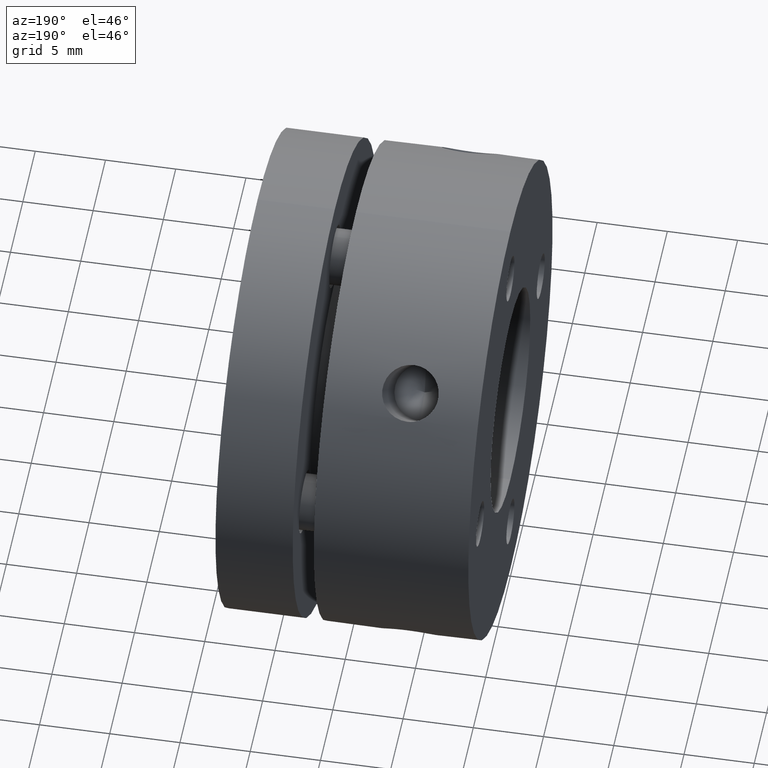
[diagram: clean part render]
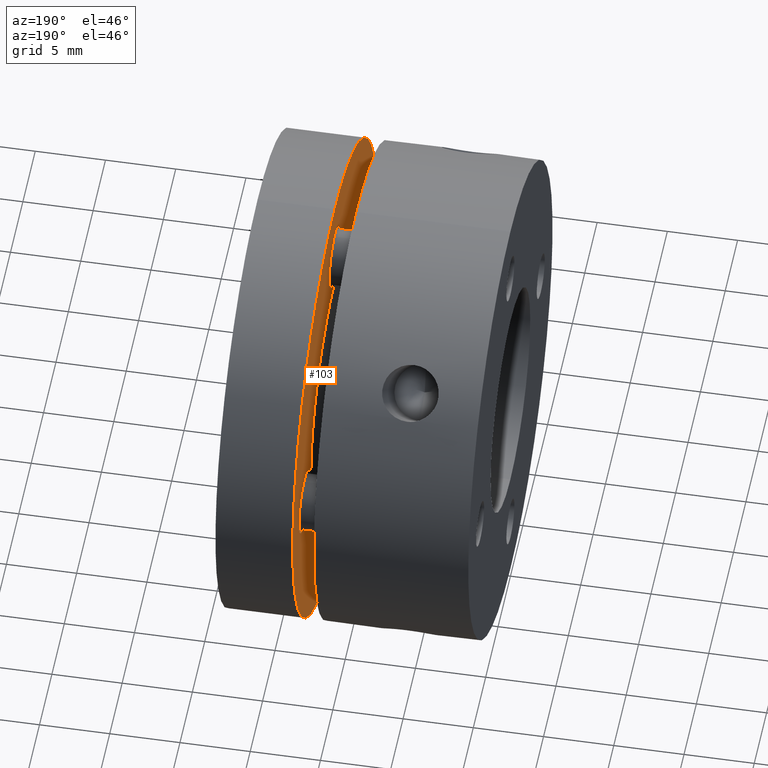
[diagram: same view with one face highlighted and labeled with its STEP entity id]
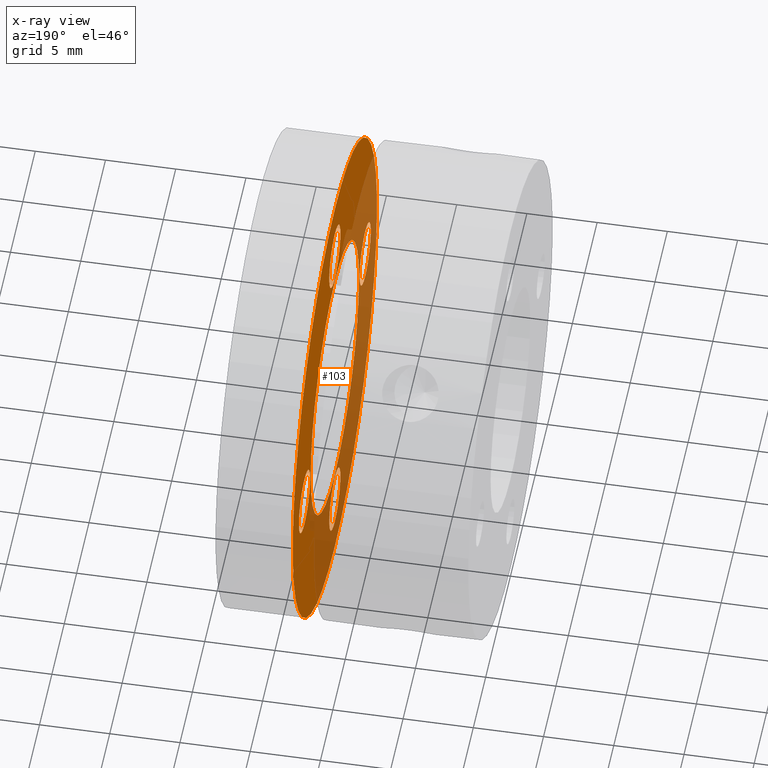
[diagram: x-ray of the same camera — body ghosted, the highlighted face saturated]
A machine part, auxiliary view. The second image highlights one B-rep face of the part: STEP entity #103.
The next image is the same camera in x-ray: the body ghosted, the highlighted face saturated — about 47% of this face is hidden behind the body in this view.
In plain terms, the highlighted planar face has unit normal (1, 0, 0).
Its self-contained STEP definition (entity closure, byte-faithful):
#103 = ADVANCED_FACE ( 'NONE', ( #336, #340, #337, #339, #338, #341 ), #3053, .F. ) ;
#148 = ORIENTED_EDGE ( 'NONE', *, *, #1424, .F. ) ;
#155 = ORIENTED_EDGE ( 'NONE', *, *, #1352, .F. ) ;
#336 = FACE_BOUND ( 'NONE', #2616, .T. ) ;
#337 = FACE_BOUND ( 'NONE', #2619, .T. ) ;
#338 = FACE_BOUND ( 'NONE', #2614, .T. ) ;
#339 = FACE_BOUND ( 'NONE', #2617, .T. ) ;
#340 = FACE_BOUND ( 'NONE', #2601, .T. ) ;
#341 = FACE_OUTER_BOUND ( 'NONE', #2615, .T. ) ;
#493 = AXIS2_PLACEMENT_3D ( 'NONE', #1573, #1574, #1575 ) ;
#527 = AXIS2_PLACEMENT_3D ( 'NONE', #3054, #3047, #3056 ) ;
#535 = AXIS2_PLACEMENT_3D ( 'NONE', #1583, #1584, #1585 ) ;
#537 = AXIS2_PLACEMENT_3D ( 'NONE', #1593, #1594, #1595 ) ;
#539 = AXIS2_PLACEMENT_3D ( 'NONE', #1604, #1605, #1606 ) ;
#595 = AXIS2_PLACEMENT_3D ( 'NONE', #1797, #1798, #1799 ) ;
#596 = AXIS2_PLACEMENT_3D ( 'NONE', #1794, #1795, #1796 ) ;
#597 = AXIS2_PLACEMENT_3D ( 'NONE', #1791, #1792, #1793 ) ;
#598 = AXIS2_PLACEMENT_3D ( 'NONE', #1788, #1789, #1790 ) ;
#630 = AXIS2_PLACEMENT_3D ( 'NONE', #1818, #1819, #1820 ) ;
#636 = AXIS2_PLACEMENT_3D ( 'NONE', #1785, #1786, #1787 ) ;
#666 = AXIS2_PLACEMENT_3D ( 'NONE', #1486, #1487, #1485 ) ;
#683 = AXIS2_PLACEMENT_3D ( 'NONE', #1563, #1564, #1565 ) ;
#833 = CIRCLE ( 'NONE', #666, 9.749999999999996400 ) ;
#865 = CIRCLE ( 'NONE', #683, 2.250000000000000400 ) ;
#874 = CIRCLE ( 'NONE', #493, 2.250000000000000400 ) ;
#880 = CIRCLE ( 'NONE', #535, 2.250000000000000400 ) ;
#886 = CIRCLE ( 'NONE', #537, 2.250000000000000400 ) ;
#892 = CIRCLE ( 'NONE', #539, 17.00000000000000000 ) ;
#992 = CIRCLE ( 'NONE', #636, 17.00000000000000000 ) ;
#993 = CIRCLE ( 'NONE', #598, 2.250000000000000400 ) ;
#994 = CIRCLE ( 'NONE', #597, 2.250000000000000400 ) ;
#995 = CIRCLE ( 'NONE', #596, 2.250000000000000400 ) ;
#996 = CIRCLE ( 'NONE', #595, 2.250000000000000400 ) ;
#1003 = CIRCLE ( 'NONE', #630, 9.749999999999996400 ) ;
#1209 = ORIENTED_EDGE ( 'NONE', *, *, #1425, .F. ) ;
#1213 = ORIENTED_EDGE ( 'NONE', *, *, #1344, .F. ) ;
#1217 = ORIENTED_EDGE ( 'NONE', *, *, #1348, .F. ) ;
#1312 = EDGE_CURVE ( 'NONE', #2767, #2733, #833, .T. ) ;
#1336 = EDGE_CURVE ( 'NONE', #2692, #2801, #865, .T. ) ;
#1340 = EDGE_CURVE ( 'NONE', #2711, #2756, #874, .T. ) ;
#1344 = EDGE_CURVE ( 'NONE', #2695, #2715, #880, .T. ) ;
#1348 = EDGE_CURVE ( 'NONE', #2671, #2735, #886, .T. ) ;
#1352 = EDGE_CURVE ( 'NONE', #2718, #2727, #892, .T. ) ;
#1423 = EDGE_CURVE ( 'NONE', #2727, #2718, #992, .T. ) ;
#1424 = EDGE_CURVE ( 'NONE', #2735, #2671, #993, .T. ) ;
#1425 = EDGE_CURVE ( 'NONE', #2715, #2695, #994, .T. ) ;
#1426 = EDGE_CURVE ( 'NONE', #2756, #2711, #995, .T. ) ;
#1427 = EDGE_CURVE ( 'NONE', #2801, #2692, #996, .T. ) ;
#1434 = EDGE_CURVE ( 'NONE', #2733, #2767, #1003, .T. ) ;
#1485 = DIRECTION ( 'NONE',  ( 0.0000000000000000000, 0.0000000000000000000, 1.000000000000000000 ) ) ;
#1486 = CARTESIAN_POINT ( 'NONE',  ( 12.50000000000000700, 0.0000000000000000000, 0.0000000000000000000 ) ) ;
#1487 = DIRECTION ( 'NONE',  ( -1.000000000000000000, 0.0000000000000000000, 0.0000000000000000000 ) ) ;
#1563 = CARTESIAN_POINT ( 'NONE',  ( 12.50000000000000400, 0.0000000000000000000, 12.25000000000000500 ) ) ;
#1564 = DIRECTION ( 'NONE',  ( -1.000000000000000000, -0.0000000000000000000, -0.0000000000000000000 ) ) ;
#1565 = DIRECTION ( 'NONE',  ( 0.0000000000000000000, 0.0000000000000000000, -1.000000000000000000 ) ) ;
#1573 = CARTESIAN_POINT ( 'NONE',  ( 12.50000000000000400, -12.25000000000000500, 7.500961999999999900E-016 ) ) ;
#1574 = DIRECTION ( 'NONE',  ( -1.000000000000000000, -0.0000000000000000000, -0.0000000000000000000 ) ) ;
#1575 = DIRECTION ( 'NONE',  ( 0.0000000000000000000, 0.0000000000000000000, -1.000000000000000000 ) ) ;
#1583 = CARTESIAN_POINT ( 'NONE',  ( 12.50000000000000400, -1.500192000000000300E-015, -12.25000000000000500 ) ) ;
#1584 = DIRECTION ( 'NONE',  ( -1.000000000000000000, -0.0000000000000000000, -0.0000000000000000000 ) ) ;
#1585 = DIRECTION ( 'NONE',  ( 0.0000000000000000000, 0.0000000000000000000, -1.000000000000000000 ) ) ;
#1593 = CARTESIAN_POINT ( 'NONE',  ( 12.50000000000000400, 12.25000000000000500, -2.250288000000000100E-015 ) ) ;
#1594 = DIRECTION ( 'NONE',  ( -1.000000000000000000, -0.0000000000000000000, -0.0000000000000000000 ) ) ;
#1595 = DIRECTION ( 'NONE',  ( 0.0000000000000000000, 0.0000000000000000000, -1.000000000000000000 ) ) ;
#1604 = CARTESIAN_POINT ( 'NONE',  ( 12.50000000000000400, 0.0000000000000000000, 0.0000000000000000000 ) ) ;
#1605 = DIRECTION ( 'NONE',  ( 1.000000000000000000, 0.0000000000000000000, 0.0000000000000000000 ) ) ;
#1606 = DIRECTION ( 'NONE',  ( 0.0000000000000000000, 0.0000000000000000000, -1.000000000000000000 ) ) ;
#1785 = CARTESIAN_POINT ( 'NONE',  ( 12.50000000000000400, 0.0000000000000000000, 0.0000000000000000000 ) ) ;
#1786 = DIRECTION ( 'NONE',  ( 1.000000000000000000, 0.0000000000000000000, 0.0000000000000000000 ) ) ;
#1787 = DIRECTION ( 'NONE',  ( 0.0000000000000000000, 0.0000000000000000000, -1.000000000000000000 ) ) ;
#1788 = CARTESIAN_POINT ( 'NONE',  ( 12.50000000000000400, 12.25000000000000500, -2.250288000000000100E-015 ) ) ;
#1789 = DIRECTION ( 'NONE',  ( -1.000000000000000000, -0.0000000000000000000, -0.0000000000000000000 ) ) ;
#1790 = DIRECTION ( 'NONE',  ( 0.0000000000000000000, 0.0000000000000000000, -1.000000000000000000 ) ) ;
#1791 = CARTESIAN_POINT ( 'NONE',  ( 12.50000000000000400, -1.500192000000000300E-015, -12.25000000000000500 ) ) ;
#1792 = DIRECTION ( 'NONE',  ( -1.000000000000000000, -0.0000000000000000000, -0.0000000000000000000 ) ) ;
#1793 = DIRECTION ( 'NONE',  ( 0.0000000000000000000, 0.0000000000000000000, -1.000000000000000000 ) ) ;
#1794 = CARTESIAN_POINT ( 'NONE',  ( 12.50000000000000400, -12.25000000000000500, 7.500961999999999900E-016 ) ) ;
#1795 = DIRECTION ( 'NONE',  ( -1.000000000000000000, -0.0000000000000000000, -0.0000000000000000000 ) ) ;
#1796 = DIRECTION ( 'NONE',  ( 0.0000000000000000000, 0.0000000000000000000, -1.000000000000000000 ) ) ;
#1797 = CARTESIAN_POINT ( 'NONE',  ( 12.50000000000000400, 0.0000000000000000000, 12.25000000000000500 ) ) ;
#1798 = DIRECTION ( 'NONE',  ( -1.000000000000000000, -0.0000000000000000000, -0.0000000000000000000 ) ) ;
#1799 = DIRECTION ( 'NONE',  ( 0.0000000000000000000, 0.0000000000000000000, -1.000000000000000000 ) ) ;
#1818 = CARTESIAN_POINT ( 'NONE',  ( 12.50000000000000700, 0.0000000000000000000, 0.0000000000000000000 ) ) ;
#1819 = DIRECTION ( 'NONE',  ( -1.000000000000000000, 0.0000000000000000000, 0.0000000000000000000 ) ) ;
#1820 = DIRECTION ( 'NONE',  ( 0.0000000000000000000, 0.0000000000000000000, 1.000000000000000000 ) ) ;
#1954 = CARTESIAN_POINT ( 'NONE',  ( 12.50000000000000400, 12.25000000000000500, -2.250000000000002200 ) ) ;
#1975 = CARTESIAN_POINT ( 'NONE',  ( 12.50000000000000400, 0.0000000000000000000, 10.00000000000000500 ) ) ;
#1978 = CARTESIAN_POINT ( 'NONE',  ( 12.50000000000000400, -1.500192000000000300E-015, -14.50000000000000500 ) ) ;
#1994 = CARTESIAN_POINT ( 'NONE',  ( 12.50000000000000400, -12.25000000000000500, -2.249999999999999600 ) ) ;
#1998 = CARTESIAN_POINT ( 'NONE',  ( 12.50000000000000400, -1.224646470191845800E-015, -10.00000000000000500 ) ) ;
#2001 = CARTESIAN_POINT ( 'NONE',  ( 12.50000000000000400, 0.0000000000000000000, -17.00000000000000000 ) ) ;
#2010 = CARTESIAN_POINT ( 'NONE',  ( 12.50000000000000400, 2.081899558550500300E-015, 17.00000000000000000 ) ) ;
#2016 = CARTESIAN_POINT ( 'NONE',  ( 12.50000000000000700, 1.194030629168669100E-015, -9.749999999999996400 ) ) ;
#2018 = CARTESIAN_POINT ( 'NONE',  ( 12.50000000000000400, 12.25000000000000500, 2.249999999999998200 ) ) ;
#2039 = CARTESIAN_POINT ( 'NONE',  ( 12.50000000000000400, -12.25000000000000500, 2.250000000000001300 ) ) ;
#2050 = CARTESIAN_POINT ( 'NONE',  ( 12.50000000000000700, 0.0000000000000000000, 9.749999999999996400 ) ) ;
#2084 = CARTESIAN_POINT ( 'NONE',  ( 12.50000000000000400, 2.755455298081544800E-016, 14.50000000000000500 ) ) ;
#2217 = ORIENTED_EDGE ( 'NONE', *, *, #1423, .F. ) ;
#2454 = ORIENTED_EDGE ( 'NONE', *, *, #1340, .F. ) ;
#2455 = ORIENTED_EDGE ( 'NONE', *, *, #1336, .F. ) ;
#2460 = ORIENTED_EDGE ( 'NONE', *, *, #1427, .F. ) ;
#2461 = ORIENTED_EDGE ( 'NONE', *, *, #1434, .F. ) ;
#2462 = ORIENTED_EDGE ( 'NONE', *, *, #1312, .F. ) ;
#2507 = ORIENTED_EDGE ( 'NONE', *, *, #1426, .F. ) ;
#2601 = EDGE_LOOP ( 'NONE', ( #2455, #2460 ) ) ;
#2614 = EDGE_LOOP ( 'NONE', ( #1217, #148 ) ) ;
#2615 = EDGE_LOOP ( 'NONE', ( #155, #2217 ) ) ;
#2616 = EDGE_LOOP ( 'NONE', ( #2462, #2461 ) ) ;
#2617 = EDGE_LOOP ( 'NONE', ( #1213, #1209 ) ) ;
#2619 = EDGE_LOOP ( 'NONE', ( #2454, #2507 ) ) ;
#2671 = VERTEX_POINT ( 'NONE', #1954 ) ;
#2692 = VERTEX_POINT ( 'NONE', #1975 ) ;
#2695 = VERTEX_POINT ( 'NONE', #1978 ) ;
#2711 = VERTEX_POINT ( 'NONE', #1994 ) ;
#2715 = VERTEX_POINT ( 'NONE', #1998 ) ;
#2718 = VERTEX_POINT ( 'NONE', #2001 ) ;
#2727 = VERTEX_POINT ( 'NONE', #2010 ) ;
#2733 = VERTEX_POINT ( 'NONE', #2016 ) ;
#2735 = VERTEX_POINT ( 'NONE', #2018 ) ;
#2756 = VERTEX_POINT ( 'NONE', #2039 ) ;
#2767 = VERTEX_POINT ( 'NONE', #2050 ) ;
#2801 = VERTEX_POINT ( 'NONE', #2084 ) ;
#3047 = DIRECTION ( 'NONE',  ( 1.000000000000000000, -0.0000000000000000000, 0.0000000000000000000 ) ) ;
#3053 = PLANE ( 'NONE',  #527 ) ;
#3054 = CARTESIAN_POINT ( 'NONE',  ( 12.50000000000000400, 13.37500000000000400, 0.0000000000000000000 ) ) ;
#3056 = DIRECTION ( 'NONE',  ( 0.0000000000000000000, 0.0000000000000000000, -1.000000000000000000 ) ) ;